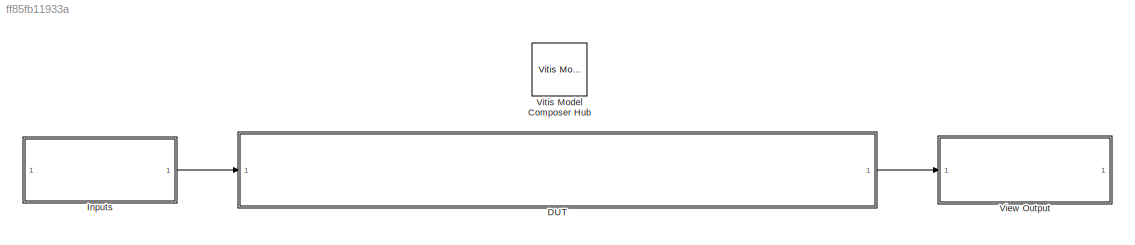
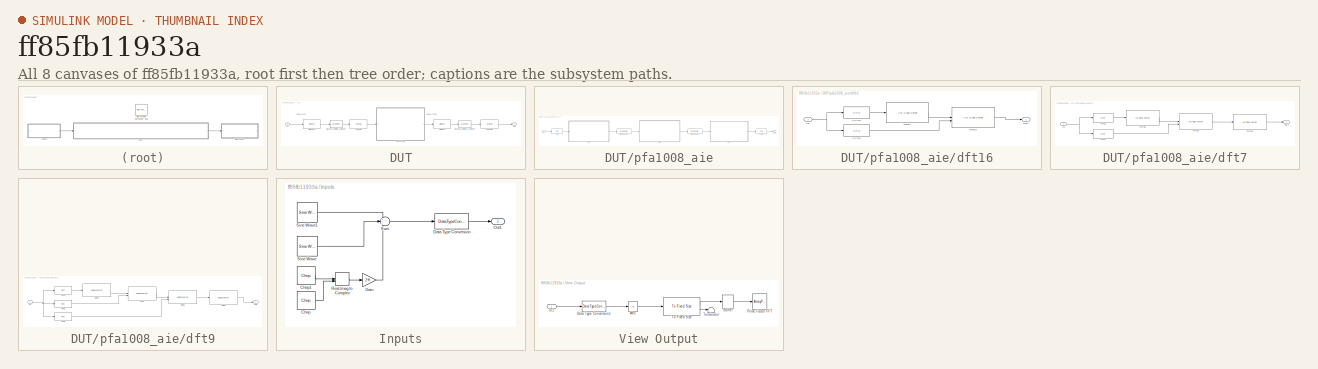
[diagram: thumbnail index - all 8 canvases of the model, root first then tree order]
MODEL slx_ff85fb11933a
KIND model
CONFIG AbsTol = auto
CONFIG EnableMultiTasking = off
CONFIG FixedStep = auto
CONFIG InitFcn = coeffs;
CONFIG MaxStep = auto
CONFIG MinStep = auto
CONFIG RelTol = 1e-3
CONFIG SampleTimeConstraint = Unconstrained
CONFIG SolverName = VariableStepAuto
CONFIG StartTime = 0.0
CONFIG StopTime = 1e-4
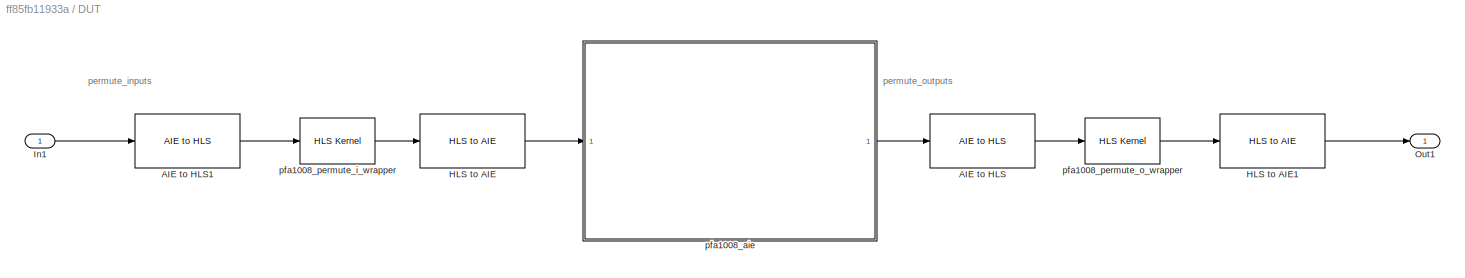
BLOCK [SubSystem] DUT
BLOCK [Reference] DUT/AIE to HLS  REF=aieUtilities/AIE to HLS
  SourceBlock = aieUtilities/AIE to HLS
  SourceType = AIE to HLS
BLOCK [Reference] DUT/AIE to HLS1  REF=aieUtilities/AIE to HLS
  SourceBlock = aieUtilities/AIE to HLS
  SourceType = AIE to HLS
BLOCK [Reference] DUT/HLS to AIE  REF=aieUtilities/HLS to AIE
  SourceBlock = aieUtilities/HLS to AIE
  SourceType = HLS to AIE
BLOCK [Reference] DUT/HLS to AIE1  REF=aieUtilities/HLS to AIE
  SourceBlock = aieUtilities/HLS to AIE
  SourceType = HLS to AIE
BLOCK [Inport] DUT/In1
BLOCK [Outport] DUT/Out1
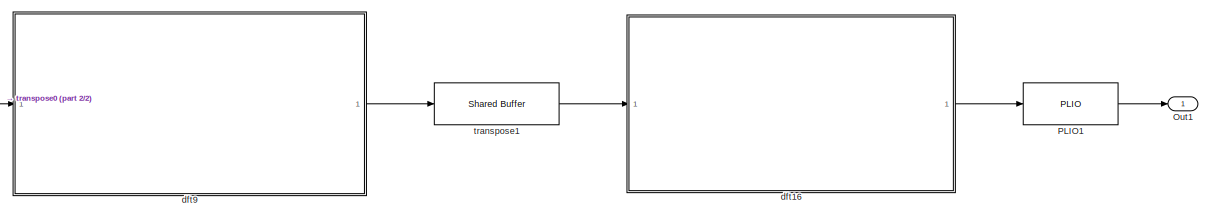
[diagram: DUT/pfa1008_aie - part 1/2, right side, full height]
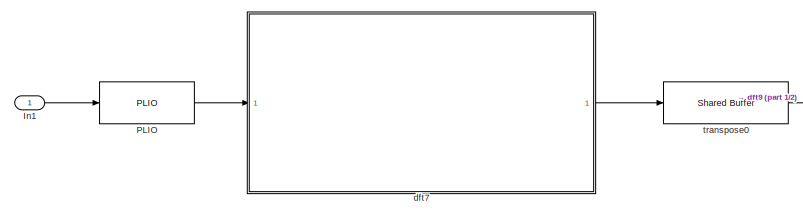
[diagram: DUT/pfa1008_aie - part 2/2, left side, full height]
BLOCK [SubSystem] DUT/pfa1008_aie
BLOCK [Inport] DUT/pfa1008_aie/In1
BLOCK [Outport] DUT/pfa1008_aie/Out1
BLOCK [Reference] DUT/pfa1008_aie/PLIO  REF=aieBasic/PLIO
  SourceBlock = aieBasic/PLIO
  SourceType = PLIO
BLOCK [Reference] DUT/pfa1008_aie/PLIO1  REF=aieBasic/PLIO
  SourceBlock = aieBasic/PLIO
  SourceType = PLIO
BLOCK [SubSystem] DUT/pfa1008_aie/dft16
BLOCK [Reference] DUT/pfa1008_aie/dft16/FIFO5  REF=aieBasic/FIFO
  SourceBlock = aieBasic/FIFO
  SourceType = FIFO
BLOCK [Reference] DUT/pfa1008_aie/dft16/FIFO6  REF=aieBasic/FIFO
  SourceBlock = aieBasic/FIFO
  SourceType = FIFO
BLOCK [Inport] DUT/pfa1008_aie/dft16/In1
BLOCK [Outport] DUT/pfa1008_aie/dft16/Out1
BLOCK [Reference] DUT/pfa1008_aie/dft16/mmul7  REF=aieBasic/AIE Class Kernel
  SourceBlock = aieBasic/AIE Class Kernel
  SourceType = AIE Class Kernel Function
BLOCK [Reference] DUT/pfa1008_aie/dft16/mmul8  REF=aieBasic/AIE Class Kernel
  SourceBlock = aieBasic/AIE Class Kernel
  SourceType = AIE Class Kernel Function
BLOCK [SubSystem] DUT/pfa1008_aie/dft7
BLOCK [Reference] DUT/pfa1008_aie/dft7/FIFO  REF=aieBasic/FIFO
  SourceBlock = aieBasic/FIFO
  SourceType = FIFO
BLOCK [Reference] DUT/pfa1008_aie/dft7/FIFO1  REF=aieBasic/FIFO
  SourceBlock = aieBasic/FIFO
  SourceType = FIFO
BLOCK [Inport] DUT/pfa1008_aie/dft7/In1
BLOCK [Outport] DUT/pfa1008_aie/dft7/Out1
BLOCK [Reference] DUT/pfa1008_aie/dft7/mmul0  REF=aieBasic/AIE Class Kernel
  SourceBlock = aieBasic/AIE Class Kernel
  SourceType = AIE Class Kernel Function
BLOCK [Reference] DUT/pfa1008_aie/dft7/mmul1  REF=aieBasic/AIE Class Kernel
  SourceBlock = aieBasic/AIE Class Kernel
  SourceType = AIE Class Kernel Function
BLOCK [Reference] DUT/pfa1008_aie/dft7/mmul2  REF=aieBasic/AIE Class Kernel
  SourceBlock = aieBasic/AIE Class Kernel
  SourceType = AIE Class Kernel Function
BLOCK [SubSystem] DUT/pfa1008_aie/dft9
BLOCK [Reference] DUT/pfa1008_aie/dft9/FIFO2  REF=aieBasic/FIFO
  SourceBlock = aieBasic/FIFO
  SourceType = FIFO
BLOCK [Reference] DUT/pfa1008_aie/dft9/FIFO3  REF=aieBasic/FIFO
  SourceBlock = aieBasic/FIFO
  SourceType = FIFO
BLOCK [Reference] DUT/pfa1008_aie/dft9/FIFO4  REF=aieBasic/FIFO
  SourceBlock = aieBasic/FIFO
  SourceType = FIFO
BLOCK [Inport] DUT/pfa1008_aie/dft9/In1
BLOCK [Outport] DUT/pfa1008_aie/dft9/Out1
BLOCK [Reference] DUT/pfa1008_aie/dft9/mmul3  REF=aieBasic/AIE Class Kernel
  SourceBlock = aieBasic/AIE Class Kernel
  SourceType = AIE Class Kernel Function
BLOCK [Reference] DUT/pfa1008_aie/dft9/mmul4  REF=aieBasic/AIE Class Kernel
  SourceBlock = aieBasic/AIE Class Kernel
  SourceType = AIE Class Kernel Function
BLOCK [Reference] DUT/pfa1008_aie/dft9/mmul5  REF=aieBasic/AIE Class Kernel
  SourceBlock = aieBasic/AIE Class Kernel
  SourceType = AIE Class Kernel Function
BLOCK [Reference] DUT/pfa1008_aie/dft9/mmul6  REF=aieBasic/AIE Class Kernel
  SourceBlock = aieBasic/AIE Class Kernel
  SourceType = AIE Class Kernel Function
BLOCK [Reference] DUT/pfa1008_aie/transpose0  REF=aieBasic/Shared Buffer
  SourceBlock = aieBasic/Shared Buffer
  SourceType = Shared Buffer
BLOCK [Reference] DUT/pfa1008_aie/transpose1  REF=aieBasic/Shared Buffer
  SourceBlock = aieBasic/Shared Buffer
  SourceType = Shared Buffer
BLOCK [Reference] DUT/pfa1008_permute_i_wrapper  REF=hlsBasic/HLS Kernel
  SourceBlock = hlsBasic/HLS Kernel
  SourceType = HLS Kernel Function
BLOCK [Reference] DUT/pfa1008_permute_o_wrapper  REF=hlsBasic/HLS Kernel
  SourceBlock = hlsBasic/HLS Kernel
  SourceType = HLS Kernel Function
BLOCK [SubSystem] Inputs
BLOCK [Reference] Inputs/Chirp  REF=dspsrcs4/Chirp
  SourceBlock = dspsrcs4/Chirp
  SourceType = Chirp
BLOCK [Reference] Inputs/Chirp1  REF=dspsrcs4/Chirp
  SourceBlock = dspsrcs4/Chirp
  SourceType = Chirp
BLOCK [DataTypeConversion] Inputs/Data Type Conversion
  OutDataTypeStr = int16
  RndMeth = Floor
  SaturateOnIntegerOverflow = off
BLOCK [Gain] Inputs/Gain
  Gain = 2^8
  OutDataTypeStr = double
BLOCK [Outport] Inputs/Out1
BLOCK [RealImagToComplex] Inputs/Real-Imag to Complex
BLOCK [Reference] Inputs/Sine Wave  REF=dspsrcs4/Sine Wave
  SourceBlock = dspsrcs4/Sine Wave
  SourceType = Sine Wave
BLOCK [Reference] Inputs/Sine Wave1  REF=dspsrcs4/Sine Wave
  SourceBlock = dspsrcs4/Sine Wave
  SourceType = Sine Wave
BLOCK [Sum] Inputs/Sum
  Inputs = +++
BLOCK [SubSystem] View Output
BLOCK [Abs] View Output/Abs
  OutDataTypeStr = double
  SaturateOnIntegerOverflow = off
BLOCK [Buffer] View Output/Buffer
  N = 1008
  OutputFrames = off
BLOCK [DataTypeConversion] View Output/Data Type Conversion1
  OutDataTypeStr = double
  RndMeth = Floor
  SaturateOnIntegerOverflow = off
BLOCK [Inport] View Output/In1
BLOCK [ArrayPlot] View Output/Prime Factor FFT
  GraphicalSettings = {"Style":{"BackgroundColor":[0.12941176470588237,0.12941176470588237,0.12941176470588237],"AxesColor":[0.070588235294117646,0.070588235294117646,0.070588235294117646],"LabelsColor":[0.85098039215686272,0.85098039215686272,0.85098039215686272],"PreserveColors":false,"Visible":true,"LineStyle":["-"],"LineColor":[1,0.90980392156862744,0.39215686274509803],"LineWidth":1.5,"Marker":["o"],"FontSize":"sm...<+575ch>
  MaximizeAxes = Off
  ScopeFrameLocation = window
  Visible = on
  WasSavedAsWebScope = on
  WindowPosition = [1116.000000,386.000000,800.000000,500.000000,]
  YLimits = [-4095.8765 36862.8885]
BLOCK [Terminator] View Output/Terminator
BLOCK [Reference] View Output/To Fixed Size  REF=aieUtilities/To Fixed Size
  SourceBlock = aieUtilities/To Fixed Size
  SourceType = To Fixed Size
BLOCK [Reference] Vitis Model Composer Hub  REF=vmcUtilities/Vitis Model Composer Hub
  SourceBlock = vmcUtilities/Vitis Model Composer Hub
  SourceType = VMC Hub
  Tag = genX
  UserDataPersistent = on
ANNOTATION DUT: permute_inputs
ANNOTATION DUT: permute_outputs
LINE DUT/AIE to HLS1:1 -> DUT/pfa1008_permute_i_wrapper:1
LINE DUT/AIE to HLS:1 -> DUT/pfa1008_permute_o_wrapper:1
LINE DUT/HLS to AIE1:1 -> DUT/Out1:1
LINE DUT/HLS to AIE:1 -> DUT/pfa1008_aie:1
LINE DUT/In1:1 -> DUT/AIE to HLS1:1
LINE DUT/pfa1008_aie/In1:1 -> DUT/pfa1008_aie/PLIO:1
LINE DUT/pfa1008_aie/PLIO1:1 -> DUT/pfa1008_aie/Out1:1
LINE DUT/pfa1008_aie/PLIO:1 -> DUT/pfa1008_aie/dft7:1
LINE DUT/pfa1008_aie/dft16/FIFO5:1 -> DUT/pfa1008_aie/dft16/mmul7:1
LINE DUT/pfa1008_aie/dft16/FIFO6:1 -> DUT/pfa1008_aie/dft16/mmul8:2
NET DUT/pfa1008_aie/dft16/In1:1 -> DUT/pfa1008_aie/dft16/FIFO5:1, DUT/pfa1008_aie/dft16/FIFO6:1
LINE DUT/pfa1008_aie/dft16/mmul7:1 -> DUT/pfa1008_aie/dft16/mmul8:1
LINE DUT/pfa1008_aie/dft16/mmul8:1 -> DUT/pfa1008_aie/dft16/Out1:1
LINE DUT/pfa1008_aie/dft16:1 -> DUT/pfa1008_aie/PLIO1:1
LINE DUT/pfa1008_aie/dft7/FIFO1:1 -> DUT/pfa1008_aie/dft7/mmul0:1
LINE DUT/pfa1008_aie/dft7/FIFO:1 -> DUT/pfa1008_aie/dft7/mmul1:2
NET DUT/pfa1008_aie/dft7/In1:1 -> DUT/pfa1008_aie/dft7/FIFO1:1, DUT/pfa1008_aie/dft7/FIFO:1
LINE DUT/pfa1008_aie/dft7/mmul0:1 -> DUT/pfa1008_aie/dft7/mmul1:1
LINE DUT/pfa1008_aie/dft7/mmul1:1 -> DUT/pfa1008_aie/dft7/mmul2:1
LINE DUT/pfa1008_aie/dft7/mmul2:1 -> DUT/pfa1008_aie/dft7/Out1:1
LINE DUT/pfa1008_aie/dft7:1 -> DUT/pfa1008_aie/transpose0:1
LINE DUT/pfa1008_aie/dft9/FIFO2:1 -> DUT/pfa1008_aie/dft9/mmul6:2
LINE DUT/pfa1008_aie/dft9/FIFO3:1 -> DUT/pfa1008_aie/dft9/mmul5:2
LINE DUT/pfa1008_aie/dft9/FIFO4:1 -> DUT/pfa1008_aie/dft9/mmul4:1
NET DUT/pfa1008_aie/dft9/In1:1 -> DUT/pfa1008_aie/dft9/FIFO2:1, DUT/pfa1008_aie/dft9/FIFO3:1, DUT/pfa1008_aie/dft9/FIFO4:1
LINE DUT/pfa1008_aie/dft9/mmul3:1 -> DUT/pfa1008_aie/dft9/Out1:1
LINE DUT/pfa1008_aie/dft9/mmul4:1 -> DUT/pfa1008_aie/dft9/mmul5:1
LINE DUT/pfa1008_aie/dft9/mmul5:1 -> DUT/pfa1008_aie/dft9/mmul6:1
LINE DUT/pfa1008_aie/dft9/mmul6:1 -> DUT/pfa1008_aie/dft9/mmul3:1
LINE DUT/pfa1008_aie/dft9:1 -> DUT/pfa1008_aie/transpose1:1
LINE DUT/pfa1008_aie/transpose0:1 -> DUT/pfa1008_aie/dft9:1
LINE DUT/pfa1008_aie/transpose1:1 -> DUT/pfa1008_aie/dft16:1
LINE DUT/pfa1008_aie:1 -> DUT/AIE to HLS:1
LINE DUT/pfa1008_permute_i_wrapper:1 -> DUT/HLS to AIE:1
LINE DUT/pfa1008_permute_o_wrapper:1 -> DUT/HLS to AIE1:1
LINE DUT:1 -> View Output:1
LINE Inputs/Chirp1:1 -> Inputs/Real-Imag to Complex:1
LINE Inputs/Chirp:1 -> Inputs/Real-Imag to Complex:2
LINE Inputs/Data Type Conversion:1 -> Inputs/Out1:1
LINE Inputs/Gain:1 -> Inputs/Sum:3
LINE Inputs/Real-Imag to Complex:1 -> Inputs/Gain:1
LINE Inputs/Sine Wave1:1 -> Inputs/Sum:1
LINE Inputs/Sine Wave:1 -> Inputs/Sum:2
LINE Inputs/Sum:1 -> Inputs/Data Type Conversion:1
LINE Inputs:1 -> DUT:1
LINE View Output/Abs:1 -> View Output/To Fixed Size:1
LINE View Output/Buffer:1 -> View Output/Prime Factor FFT:1
LINE View Output/Data Type Conversion1:1 -> View Output/Abs:1
LINE View Output/In1:1 -> View Output/Data Type Conversion1:1
LINE View Output/To Fixed Size:1 -> View Output/Buffer:1
LINE View Output/To Fixed Size:2 -> View Output/Terminator:1
note: NET lines group one-source signal fan-out (src -> all destinations, sorted); 1:1 wires keep LINE
